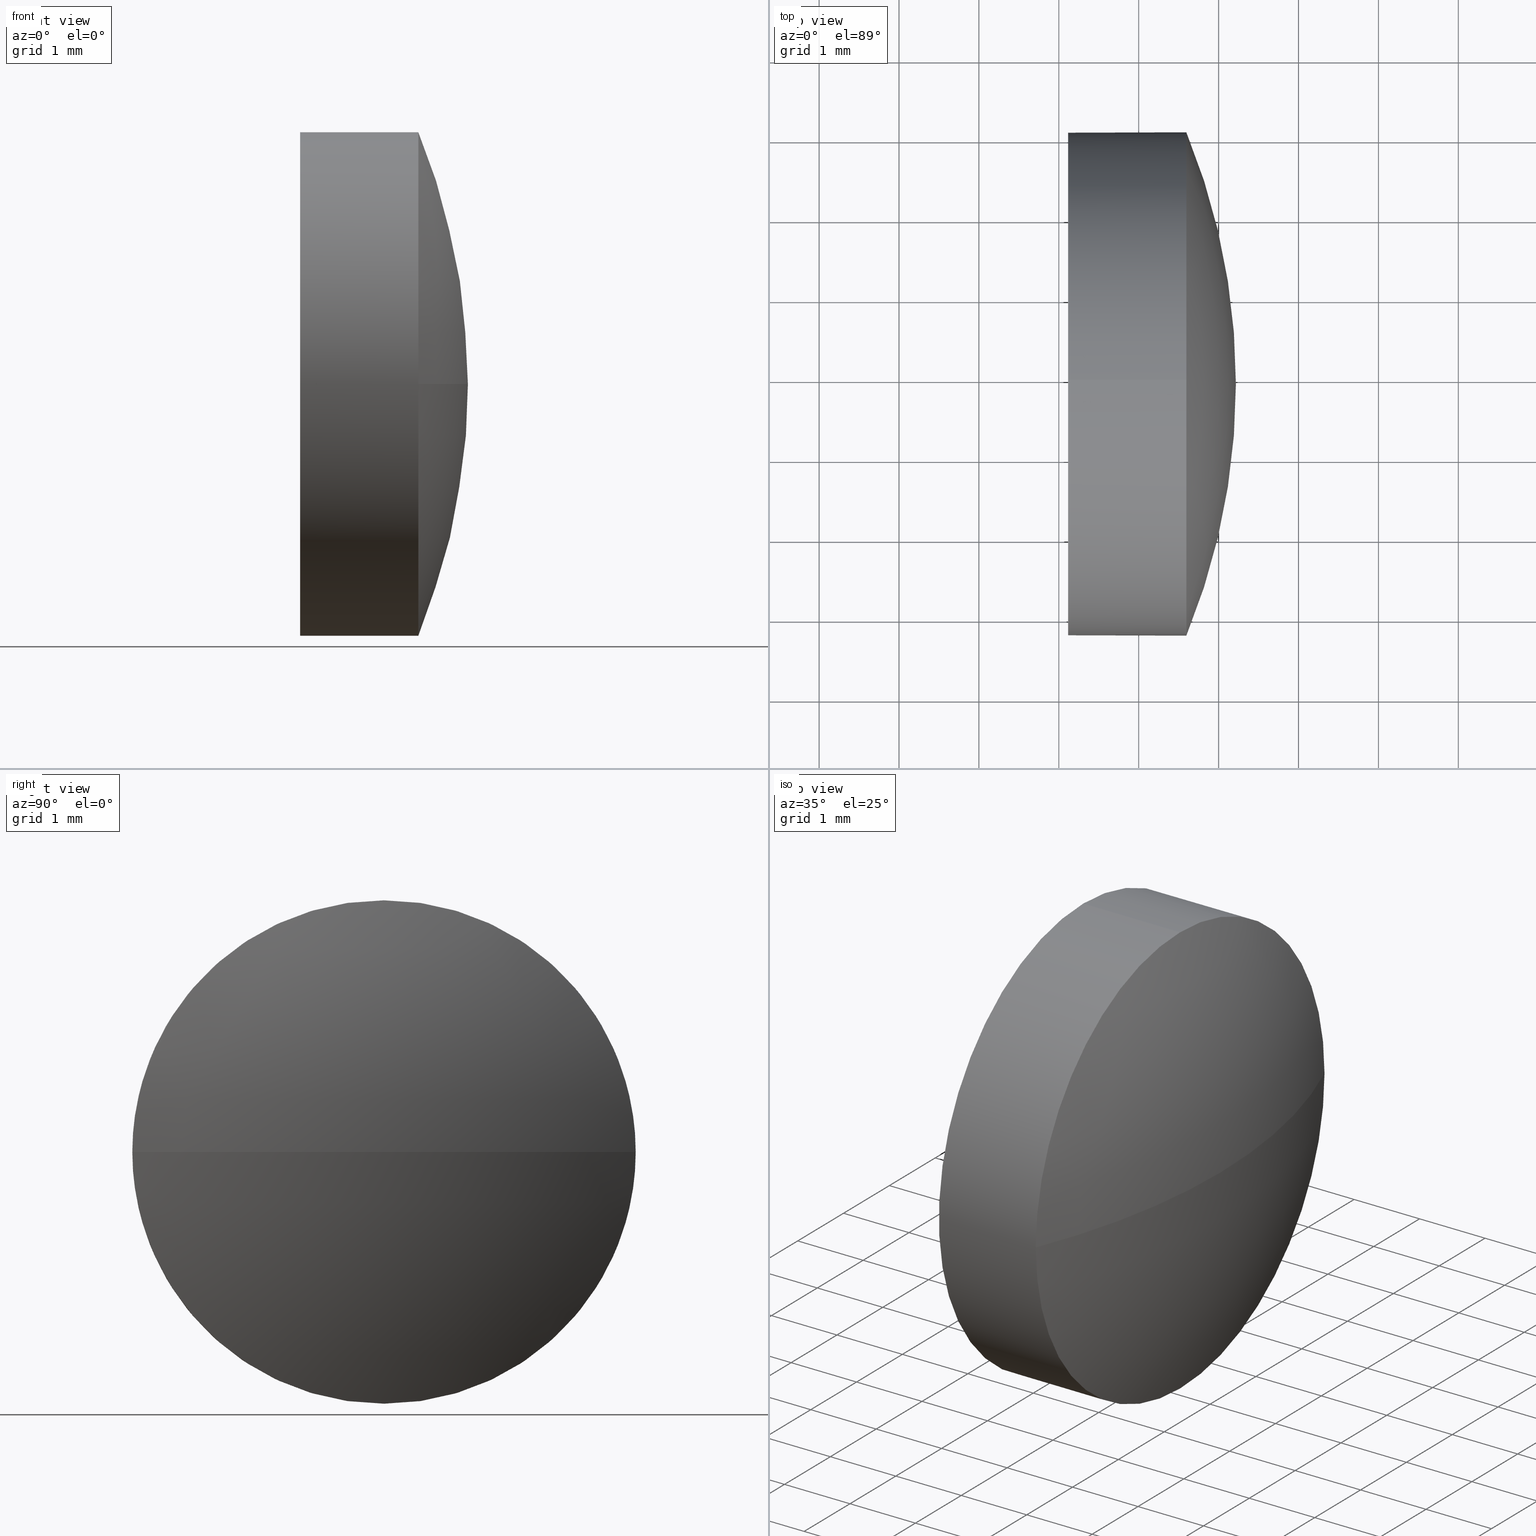
[diagram: canonical four-view strip — front | top / right | iso, engineering-drawing reading convention]
A machine part, canonical four-view strip (front | top / right | iso — engineering-drawing reading convention). The complete STEP part file that produces these views, byte-faithful:
ISO-10303-21;
HEADER;
FILE_DESCRIPTION (( 'STEP AP214' ),
    '1' );
FILE_NAME ('100009.STEP',
    '2019-04-19T06:05:47',
    ( '' ),
    ( '' ),
    'SwSTEP 2.0',
    'SolidWorks 2016',
    '' );
FILE_SCHEMA (( 'AUTOMOTIVE_DESIGN' ));
ENDSEC;

DATA;
#1 = CARTESIAN_POINT ( 'NONE',  ( 515.1162757161529300, 138.9246211176667300, -3.149999999999986100 ) ) ;
#2 = CARTESIAN_POINT ( 'NONE',  ( 515.1162757161529300, 138.9246211176667300, 0.0000000000000000000 ) ) ;
#3 =( NAMED_UNIT ( * ) SI_UNIT ( $, .STERADIAN. ) SOLID_ANGLE_UNIT ( ) );
#4 = PRESENTATION_STYLE_ASSIGNMENT (( #178 ) ) ;
#5 = DIRECTION ( 'NONE',  ( 0.0000000000000000000, 0.0000000000000000000, 1.000000000000000000 ) ) ;
#6 = ORIENTED_EDGE ( 'NONE', *, *, #31, .F. ) ;
#7 =( GEOMETRIC_REPRESENTATION_CONTEXT ( 3 ) GLOBAL_UNCERTAINTY_ASSIGNED_CONTEXT ( ( #45 ) ) GLOBAL_UNIT_ASSIGNED_CONTEXT ( ( #23, #8, #117 ) ) REPRESENTATION_CONTEXT ( 'NONE', 'WORKASPACE' ) );
#8 =( NAMED_UNIT ( * ) PLANE_ANGLE_UNIT ( ) SI_UNIT ( $, .RADIAN. ) );
#9 = APPLICATION_CONTEXT ( 'automotive_design' ) ;
#10 = ADVANCED_FACE ( 'NONE', ( #175 ), #127, .T. ) ;
#11 = LINE ( 'NONE', #66, #115 ) ;
#12 = ORIENTED_EDGE ( 'NONE', *, *, #148, .F. ) ;
#13 = AXIS2_PLACEMENT_3D ( 'NONE', #44, #142, #104 ) ;
#14 = VERTEX_POINT ( 'NONE', #141 ) ;
#15 = DIRECTION ( 'NONE',  ( 0.0000000000000000000, 1.000000000000000000, 0.0000000000000000000 ) ) ;
#16 = SPHERICAL_SURFACE ( 'NONE', #134, 8.312016129032233600 ) ;
#17 = PLANE ( 'NONE',  #61 ) ;
#18 = DIRECTION ( 'NONE',  ( -0.0000000000000000000, 0.0000000000000000000, -1.000000000000000000 ) ) ;
#19 = ORIENTED_EDGE ( 'NONE', *, *, #31, .T. ) ;
#20 =( NAMED_UNIT ( * ) PLANE_ANGLE_UNIT ( ) SI_UNIT ( $, .RADIAN. ) );
#21 = FILL_AREA_STYLE ('',( #112 ) ) ;
#22 = SHAPE_DEFINITION_REPRESENTATION ( #136, #157 ) ;
#23 =( LENGTH_UNIT ( ) NAMED_UNIT ( * ) SI_UNIT ( .MILLI., .METRE. ) );
#24 = ORIENTED_EDGE ( 'NONE', *, *, #152, .T. ) ;
#25 = STYLED_ITEM ( 'NONE', ( #29 ), #180 ) ;
#26 =( LENGTH_UNIT ( ) NAMED_UNIT ( * ) SI_UNIT ( .MILLI., .METRE. ) );
#27 = VERTEX_POINT ( 'NONE', #183 ) ;
#28 = EDGE_CURVE ( 'NONE', #33, #27, #86, .T. ) ;
#29 = PRESENTATION_STYLE_ASSIGNMENT (( #106 ) ) ;
#30 = EDGE_LOOP ( 'NONE', ( #154, #24, #124, #6 ) ) ;
#31 = EDGE_CURVE ( 'NONE', #111, #14, #46, .T. ) ;
#32 = CIRCLE ( 'NONE', #59, 8.312016129032207000 ) ;
#33 = VERTEX_POINT ( 'NONE', #100 ) ;
#34 = DIRECTION ( 'NONE',  ( 0.0000000000000000000, 0.0000000000000000000, -1.000000000000000000 ) ) ;
#35 = AXIS2_PLACEMENT_3D ( 'NONE', #161, #54, #5 ) ;
#36 = CYLINDRICAL_SURFACE ( 'NONE', #35, 3.149999999999986100 ) ;
#37 = APPLICATION_PROTOCOL_DEFINITION ( 'draft international standard', 'automotive_design', 1998, #149 ) ;
#38 = DIRECTION ( 'NONE',  ( 1.000000000000000000, 0.0000000000000000000, 0.0000000000000000000 ) ) ;
#39 = ORIENTED_EDGE ( 'NONE', *, *, #152, .F. ) ;
#40 = AXIS2_PLACEMENT_3D ( 'NONE', #144, #101, #145 ) ;
#41 = ADVANCED_FACE ( 'NONE', ( #60 ), #16, .T. ) ;
#42 = ORIENTED_EDGE ( 'NONE', *, *, #98, .F. ) ;
#43 = AXIS2_PLACEMENT_3D ( 'NONE', #116, #155, #87 ) ;
#44 = CARTESIAN_POINT ( 'NONE',  ( 515.1162757161529300, 138.9246211176667300, 0.0000000000000000000 ) ) ;
#45 = UNCERTAINTY_MEASURE_WITH_UNIT (LENGTH_MEASURE( 1.000000000000000100E-005 ), #23, 'distance_accuracy_value', 'NONE');
#46 = CIRCLE ( 'NONE', #40, 3.149999999999986100 ) ;
#47 = CARTESIAN_POINT ( 'NONE',  ( 514.6266177325591100, 138.9246211176667300, 3.149999999999986100 ) ) ;
#48 = AXIS2_PLACEMENT_3D ( 'NONE', #2, #158, #49 ) ;
#49 = DIRECTION ( 'NONE',  ( 0.0000000000000000000, 0.0000000000000000000, 1.000000000000000000 ) ) ;
#50 = DIRECTION ( 'NONE',  ( -1.000000000000000000, -0.0000000000000000000, -0.0000000000000000000 ) ) ;
#51 = CYLINDRICAL_SURFACE ( 'NONE', #84, 3.149999999999986100 ) ;
#52 = EDGE_LOOP ( 'NONE', ( #19, #110, #146, #153, #58 ) ) ;
#53 = APPLICATION_PROTOCOL_DEFINITION ( 'draft international standard', 'automotive_design', 1998, #9 ) ;
#54 = DIRECTION ( 'NONE',  ( -1.000000000000000000, -0.0000000000000000000, -0.0000000000000000000 ) ) ;
#55 =( LENGTH_UNIT ( ) NAMED_UNIT ( * ) SI_UNIT ( .MILLI., .METRE. ) );
#56 = AXIS2_PLACEMENT_3D ( 'NONE', #184, #97, #15 ) ;
#57 = CIRCLE ( 'NONE', #186, 8.312016129032235400 ) ;
#58 = ORIENTED_EDGE ( 'NONE', *, *, #94, .T. ) ;
#59 = AXIS2_PLACEMENT_3D ( 'NONE', #160, #89, #38 ) ;
#60 = FACE_OUTER_BOUND ( 'NONE', #63, .T. ) ;
#61 = AXIS2_PLACEMENT_3D ( 'NONE', #88, #67, #34 ) ;
#62 = SURFACE_STYLE_FILL_AREA ( #131 ) ;
#63 = EDGE_LOOP ( 'NONE', ( #39, #77, #65, #42 ) ) ;
#64 = PRODUCT_DEFINITION_CONTEXT ( 'detailed design', #149, 'design' ) ;
#65 = ORIENTED_EDGE ( 'NONE', *, *, #94, .F. ) ;
#66 = CARTESIAN_POINT ( 'NONE',  ( 514.6266177325591100, 138.9246211176667300, -3.149999999999986100 ) ) ;
#67 = DIRECTION ( 'NONE',  ( 1.000000000000000000, 0.0000000000000000000, 0.0000000000000000000 ) ) ;
#68 = PRESENTATION_LAYER_ASSIGNMENT (  '', '', ( #25 ) ) ;
#69 = ORIENTED_EDGE ( 'NONE', *, *, #70, .F. ) ;
#70 = EDGE_CURVE ( 'NONE', #14, #95, #11, .T. ) ;
#71 = DIRECTION ( 'NONE',  ( -1.000000000000000000, -0.0000000000000000000, -0.0000000000000000000 ) ) ;
#72 = DIRECTION ( 'NONE',  ( -1.000000000000000000, -0.0000000000000000000, -0.0000000000000000000 ) ) ;
#73 = DIRECTION ( 'NONE',  ( 0.0000000000000000000, 0.0000000000000000000, 1.000000000000000000 ) ) ;
#74 = CARTESIAN_POINT ( 'NONE',  ( 508.9042595871206900, 138.9246211176667000, 0.0000000000000000000 ) ) ;
#75 = PRODUCT_RELATED_PRODUCT_CATEGORY ( 'part', '', ( #182 ) ) ;
#76 = SURFACE_STYLE_FILL_AREA ( #21 ) ;
#77 = ORIENTED_EDGE ( 'NONE', *, *, #165, .T. ) ;
#78 = DIRECTION ( 'NONE',  ( 0.0000000000000000000, 1.224646799147353200E-016, -1.000000000000000000 ) ) ;
#79 =( NAMED_UNIT ( * ) PLANE_ANGLE_UNIT ( ) SI_UNIT ( $, .RADIAN. ) );
#80 = CIRCLE ( 'NONE', #163, 3.149999999999986100 ) ;
#81 = ORIENTED_EDGE ( 'NONE', *, *, #105, .T. ) ;
#82 = VERTEX_POINT ( 'NONE', #168 ) ;
#83 = PRESENTATION_LAYER_ASSIGNMENT (  '', '', ( #179 ) ) ;
#84 = AXIS2_PLACEMENT_3D ( 'NONE', #102, #50, #171 ) ;
#85 = VERTEX_POINT ( 'NONE', #129 ) ;
#86 = LINE ( 'NONE', #47, #126 ) ;
#87 = DIRECTION ( 'NONE',  ( 0.0000000000000000000, 0.0000000000000000000, 1.000000000000000000 ) ) ;
#88 = CARTESIAN_POINT ( 'NONE',  ( 515.1162757161529300, 138.9246211176667000, 0.0000000000000000000 ) ) ;
#89 = DIRECTION ( 'NONE',  ( -0.0000000000000000000, 0.0000000000000000000, 1.000000000000000000 ) ) ;
#90 = DIRECTION ( 'NONE',  ( 0.0000000000000000000, 1.000000000000000000, 1.224646799147353000E-016 ) ) ;
#91 = PRODUCT_DEFINITION_FORMATION_WITH_SPECIFIED_SOURCE ( '�κ�', '', #182, .NOT_KNOWN. ) ;
#92 = DIRECTION ( 'NONE',  ( 0.0000000000000000000, 0.0000000000000000000, 1.000000000000000000 ) ) ;
#93 = ORIENTED_EDGE ( 'NONE', *, *, #148, .T. ) ;
#94 = EDGE_CURVE ( 'NONE', #33, #111, #80, .T. ) ;
#95 = VERTEX_POINT ( 'NONE', #1 ) ;
#96 = MECHANICAL_DESIGN_GEOMETRIC_PRESENTATION_REPRESENTATION (  '', ( #179 ), #7 ) ;
#97 = DIRECTION ( 'NONE',  ( -0.0000000000000000000, 0.0000000000000000000, -1.000000000000000000 ) ) ;
#98 = EDGE_CURVE ( 'NONE', #82, #33, #122, .T. ) ;
#99 = UNCERTAINTY_MEASURE_WITH_UNIT (LENGTH_MEASURE( 1.000000000000000100E-005 ), #26, 'distance_accuracy_value', 'NONE');
#100 = CARTESIAN_POINT ( 'NONE',  ( 516.5962757161529500, 138.9246211176667300, 3.149999999999986100 ) ) ;
#101 = DIRECTION ( 'NONE',  ( -1.000000000000000000, -0.0000000000000000000, -0.0000000000000000000 ) ) ;
#102 = CARTESIAN_POINT ( 'NONE',  ( 514.6266177325591100, 138.9246211176667300, 0.0000000000000000000 ) ) ;
#103 = AXIS2_PLACEMENT_3D ( 'NONE', #176, #92, #121 ) ;
#104 = DIRECTION ( 'NONE',  ( 0.0000000000000000000, 0.0000000000000000000, 1.000000000000000000 ) ) ;
#105 = EDGE_CURVE ( 'NONE', #14, #82, #167, .T. ) ;
#106 = SURFACE_STYLE_USAGE ( .BOTH. , #132 ) ;
#107 = ORIENTED_EDGE ( 'NONE', *, *, #137, .T. ) ;
#108 = SURFACE_SIDE_STYLE ('',( #62 ) ) ;
#109 = ADVANCED_FACE ( 'NONE', ( #125 ), #51, .T. ) ;
#110 = ORIENTED_EDGE ( 'NONE', *, *, #70, .T. ) ;
#111 = VERTEX_POINT ( 'NONE', #170 ) ;
#112 = FILL_AREA_STYLE_COLOUR ( '', #135 ) ;
#113 = DIRECTION ( 'NONE',  ( -1.000000000000000000, -0.0000000000000000000, -0.0000000000000000000 ) ) ;
#114 =( GEOMETRIC_REPRESENTATION_CONTEXT ( 3 ) GLOBAL_UNCERTAINTY_ASSIGNED_CONTEXT ( ( #99 ) ) GLOBAL_UNIT_ASSIGNED_CONTEXT ( ( #26, #79, #147 ) ) REPRESENTATION_CONTEXT ( 'NONE', 'WORKASPACE' ) );
#115 = VECTOR ( 'NONE', #113, 1000.000000000000000 ) ;
#116 = CARTESIAN_POINT ( 'NONE',  ( 516.5962757161529500, 138.9246211176667300, 0.0000000000000000000 ) ) ;
#117 =( NAMED_UNIT ( * ) SI_UNIT ( $, .STERADIAN. ) SOLID_ANGLE_UNIT ( ) );
#118 = FILL_AREA_STYLE_COLOUR ( '', #139 ) ;
#119 = CARTESIAN_POINT ( 'NONE',  ( 508.9042595871206900, 138.9246211176667000, 0.0000000000000000000 ) ) ;
#120 = UNCERTAINTY_MEASURE_WITH_UNIT (LENGTH_MEASURE( 1.000000000000000100E-005 ), #55, 'distance_accuracy_value', 'NONE');
#121 = DIRECTION ( 'NONE',  ( 1.000000000000000000, 0.0000000000000000000, 0.0000000000000000000 ) ) ;
#122 = CIRCLE ( 'NONE', #43, 3.149999999999986100 ) ;
#123 = PRODUCT_DEFINITION ( 'δ֪', '', #91, #64 ) ;
#124 = ORIENTED_EDGE ( 'NONE', *, *, #105, .F. ) ;
#125 = FACE_OUTER_BOUND ( 'NONE', #162, .T. ) ;
#126 = VECTOR ( 'NONE', #172, 1000.000000000000000 ) ;
#127 = SPHERICAL_SURFACE ( 'NONE', #56, 8.312016129032233600 ) ;
#128 = CARTESIAN_POINT ( 'NONE',  ( 516.5962757161529500, 138.9246211176667300, 0.0000000000000000000 ) ) ;
#129 = CARTESIAN_POINT ( 'NONE',  ( 517.2162757161529500, 138.9246211176667000, 0.0000000000000000000 ) ) ;
#130 = MECHANICAL_DESIGN_GEOMETRIC_PRESENTATION_REPRESENTATION (  '', ( #25 ), #138 ) ;
#131 = FILL_AREA_STYLE ('',( #118 ) ) ;
#132 = SURFACE_SIDE_STYLE ('',( #76 ) ) ;
#133 = PRODUCT_CONTEXT ( 'NONE', #9, 'mechanical' ) ;
#134 = AXIS2_PLACEMENT_3D ( 'NONE', #74, #18, #174 ) ;
#135 = COLOUR_RGB ( '',1.000000000000000000, 1.000000000000000000, 1.000000000000000000 ) ;
#136 = PRODUCT_DEFINITION_SHAPE ( 'NONE', 'NONE',  #123 ) ;
#137 = EDGE_CURVE ( 'NONE', #27, #95, #173, .T. ) ;
#138 =( GEOMETRIC_REPRESENTATION_CONTEXT ( 3 ) GLOBAL_UNCERTAINTY_ASSIGNED_CONTEXT ( ( #120 ) ) GLOBAL_UNIT_ASSIGNED_CONTEXT ( ( #55, #20, #3 ) ) REPRESENTATION_CONTEXT ( 'NONE', 'WORKASPACE' ) );
#139 = COLOUR_RGB ( '',1.000000000000000000, 1.000000000000000000, 1.000000000000000000 ) ;
#140 = ORIENTED_EDGE ( 'NONE', *, *, #98, .T. ) ;
#141 = CARTESIAN_POINT ( 'NONE',  ( 516.5962757161529500, 138.9246211176667300, -3.149999999999986100 ) ) ;
#142 = DIRECTION ( 'NONE',  ( -1.000000000000000000, -0.0000000000000000000, -0.0000000000000000000 ) ) ;
#143 = DIRECTION ( 'NONE',  ( 0.0000000000000000000, 0.0000000000000000000, 1.000000000000000000 ) ) ;
#144 = CARTESIAN_POINT ( 'NONE',  ( 516.5962757161529500, 138.9246211176667300, 0.0000000000000000000 ) ) ;
#145 = DIRECTION ( 'NONE',  ( 0.0000000000000000000, 0.0000000000000000000, 1.000000000000000000 ) ) ;
#146 = ORIENTED_EDGE ( 'NONE', *, *, #137, .F. ) ;
#147 =( NAMED_UNIT ( * ) SI_UNIT ( $, .STERADIAN. ) SOLID_ANGLE_UNIT ( ) );
#148 = EDGE_CURVE ( 'NONE', #95, #27, #164, .T. ) ;
#149 = APPLICATION_CONTEXT ( 'automotive_design' ) ;
#150 = FACE_OUTER_BOUND ( 'NONE', #52, .T. ) ;
#151 = ADVANCED_FACE ( 'NONE', ( #159 ), #17, .F. ) ;
#152 = EDGE_CURVE ( 'NONE', #85, #82, #57, .T. ) ;
#153 = ORIENTED_EDGE ( 'NONE', *, *, #28, .F. ) ;
#154 = ORIENTED_EDGE ( 'NONE', *, *, #165, .F. ) ;
#155 = DIRECTION ( 'NONE',  ( -1.000000000000000000, -0.0000000000000000000, -0.0000000000000000000 ) ) ;
#156 = CLOSED_SHELL ( 'NONE', ( #181, #10, #41, #109, #151 ) ) ;
#157 = ADVANCED_BREP_SHAPE_REPRESENTATION ( '100009', ( #180, #103 ), #114 ) ;
#158 = DIRECTION ( 'NONE',  ( -1.000000000000000000, -0.0000000000000000000, -0.0000000000000000000 ) ) ;
#159 = FACE_OUTER_BOUND ( 'NONE', #166, .T. ) ;
#160 = CARTESIAN_POINT ( 'NONE',  ( 508.9042595871206900, 138.9246211176667000, 0.0000000000000000000 ) ) ;
#161 = CARTESIAN_POINT ( 'NONE',  ( 514.6266177325591100, 138.9246211176667300, 0.0000000000000000000 ) ) ;
#162 = EDGE_LOOP ( 'NONE', ( #69, #81, #140, #169, #12 ) ) ;
#163 = AXIS2_PLACEMENT_3D ( 'NONE', #128, #71, #143 ) ;
#164 = CIRCLE ( 'NONE', #13, 3.149999999999986100 ) ;
#165 = EDGE_CURVE ( 'NONE', #85, #111, #32, .T. ) ;
#166 = EDGE_LOOP ( 'NONE', ( #107, #93 ) ) ;
#167 = CIRCLE ( 'NONE', #177, 3.149999999999986100 ) ;
#168 = CARTESIAN_POINT ( 'NONE',  ( 516.5962757161529500, 135.7746211176667500, -3.857637417314106500E-016 ) ) ;
#169 = ORIENTED_EDGE ( 'NONE', *, *, #28, .T. ) ;
#170 = CARTESIAN_POINT ( 'NONE',  ( 516.5962757161529500, 142.0746211176666800, 0.0000000000000000000 ) ) ;
#171 = DIRECTION ( 'NONE',  ( 0.0000000000000000000, 0.0000000000000000000, 1.000000000000000000 ) ) ;
#172 = DIRECTION ( 'NONE',  ( -1.000000000000000000, -0.0000000000000000000, -0.0000000000000000000 ) ) ;
#173 = CIRCLE ( 'NONE', #48, 3.149999999999986100 ) ;
#174 = DIRECTION ( 'NONE',  ( 0.0000000000000000000, 1.000000000000000000, 0.0000000000000000000 ) ) ;
#175 = FACE_OUTER_BOUND ( 'NONE', #30, .T. ) ;
#176 = CARTESIAN_POINT ( 'NONE',  ( 0.0000000000000000000, 0.0000000000000000000, 0.0000000000000000000 ) ) ;
#177 = AXIS2_PLACEMENT_3D ( 'NONE', #185, #72, #73 ) ;
#178 = SURFACE_STYLE_USAGE ( .BOTH. , #108 ) ;
#179 = STYLED_ITEM ( 'NONE', ( #4 ), #157 ) ;
#180 = MANIFOLD_SOLID_BREP ( '��ת2', #156 ) ;
#181 = ADVANCED_FACE ( 'NONE', ( #150 ), #36, .T. ) ;
#182 = PRODUCT ( '100009', '100009', '', ( #133 ) ) ;
#183 = CARTESIAN_POINT ( 'NONE',  ( 515.1162757161529300, 138.9246211176667300, 3.149999999999986100 ) ) ;
#184 = CARTESIAN_POINT ( 'NONE',  ( 508.9042595871206900, 138.9246211176667000, 0.0000000000000000000 ) ) ;
#185 = CARTESIAN_POINT ( 'NONE',  ( 516.5962757161529500, 138.9246211176667300, 0.0000000000000000000 ) ) ;
#186 = AXIS2_PLACEMENT_3D ( 'NONE', #119, #78, #90 ) ;
ENDSEC;
END-ISO-10303-21;
